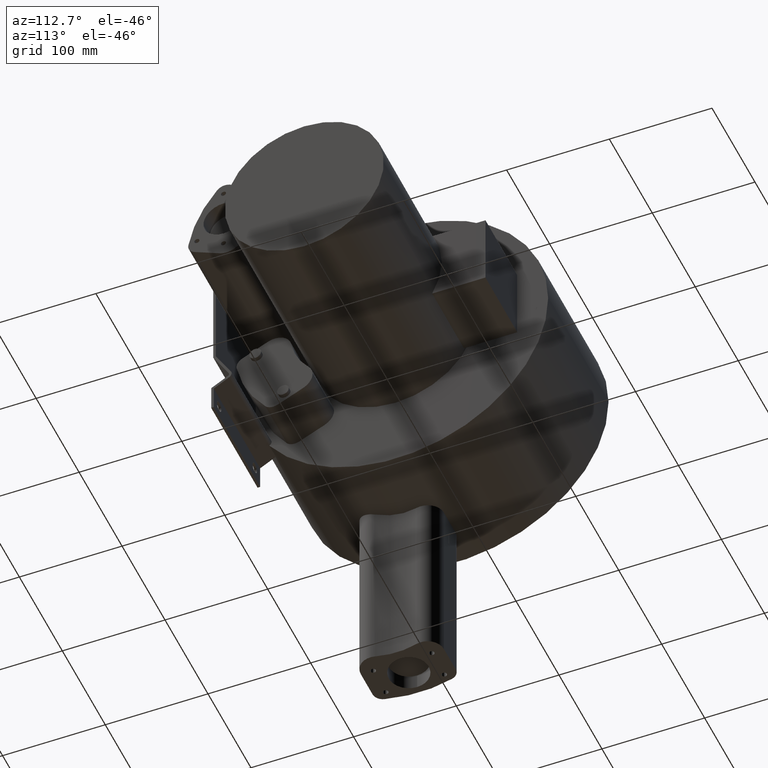
[diagram: clean part render]
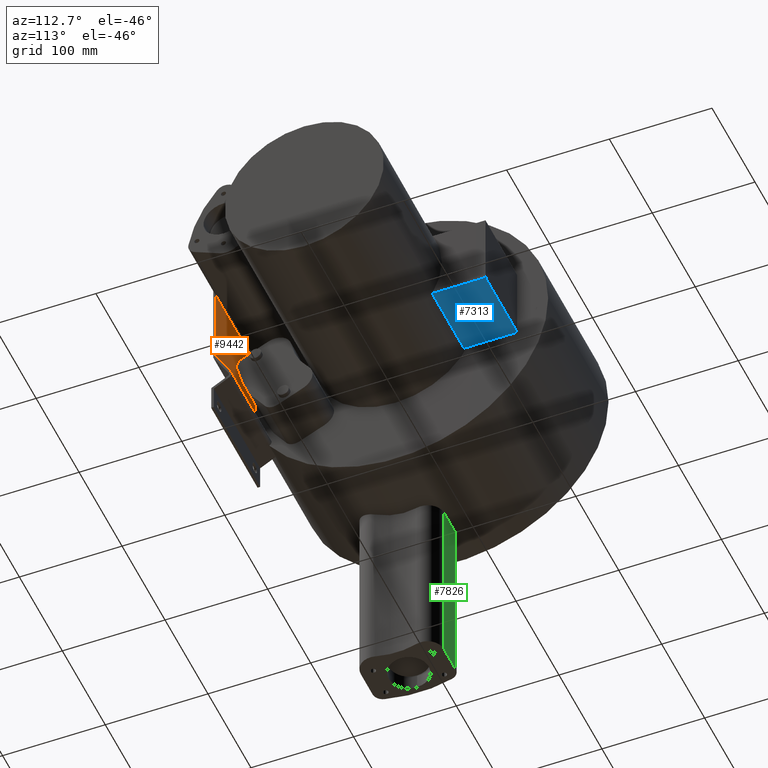
[diagram: same view with three faces highlighted in distinct colors, each labeled with its STEP entity id]
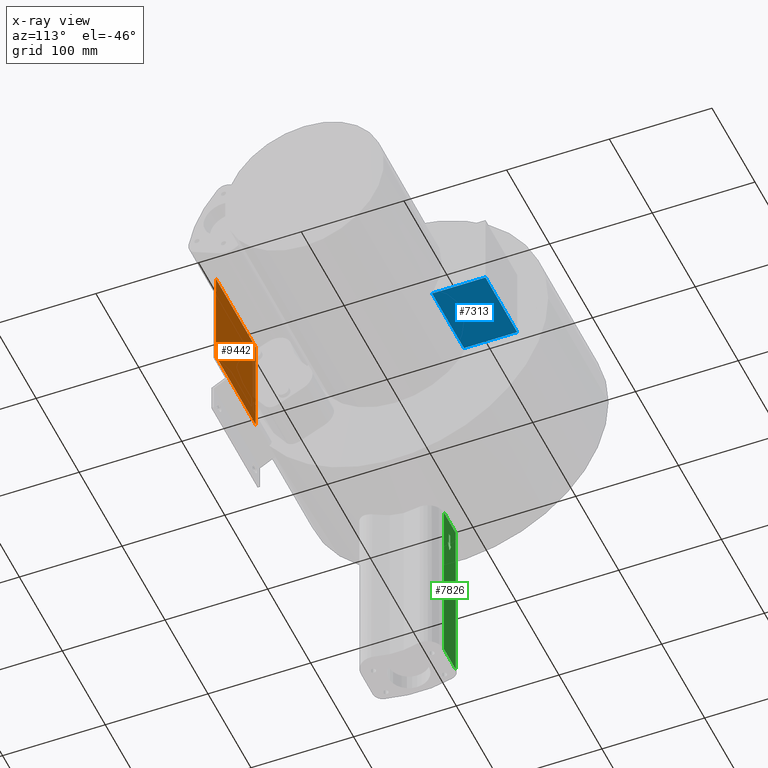
[diagram: x-ray of the same camera — body ghosted, the three highlighted faces saturated]
A machine part, auxiliary view with three faces highlighted in distinct colors.
The next image is the same camera in x-ray (body ghosted, the three faces saturated) — at least one of them is partly hidden behind the body in this view.
Their STEP definitions:

[orange] entity #9442 — the highlighted planar face has unit normal (0, 1, 0).
#8341=CARTESIAN_POINT('',(140.5,-136.5,50.133974596215467));
#8342=VERTEX_POINT('',#8341);
#8357=CARTESIAN_POINT('',(233.5,-136.5,50.133974596215467));
#8358=VERTEX_POINT('',#8357);
#8365=CARTESIAN_POINT('',(233.5,-136.5,50.133974596215467));
#8366=DIRECTION('',(-1.0,0.0,0.0));
#8367=VECTOR('',#8366,93.0);
#8368=LINE('',#8365,#8367);
#8369=EDGE_CURVE('',#8358,#8342,#8368,.T.);
#8785=CARTESIAN_POINT('',(140.5,-136.5,-50.133974596215467));
#8786=VERTEX_POINT('',#8785);
#8787=CARTESIAN_POINT('',(140.5,-136.5,50.133974596215467));
#8788=DIRECTION('',(0.0,0.0,-1.0));
#8789=VECTOR('',#8788,100.26794919243093);
#8790=LINE('',#8787,#8789);
#8791=EDGE_CURVE('',#8342,#8786,#8790,.T.);
#9213=CARTESIAN_POINT('',(233.5,-136.5,-50.133974596215467));
#9214=VERTEX_POINT('',#9213);
#9221=CARTESIAN_POINT('',(233.5,-136.5,50.133974596215623));
#9222=DIRECTION('',(0.0,0.0,-1.0));
#9223=VECTOR('',#9222,100.26794919243109);
#9224=LINE('',#9221,#9223);
#9225=EDGE_CURVE('',#8358,#9214,#9224,.T.);
#9420=CARTESIAN_POINT('',(233.5,-136.5,-50.133974596215467));
#9421=DIRECTION('',(-1.0,0.0,0.0));
#9422=VECTOR('',#9421,93.0);
#9423=LINE('',#9420,#9422);
#9424=EDGE_CURVE('',#9214,#8786,#9423,.T.);
#9431=CARTESIAN_POINT('',(130.0,-136.5,-50.133974596215467));
#9432=DIRECTION('',(0.0,1.0,0.0));
#9433=DIRECTION('',(0.0,0.0,1.0));
#9434=AXIS2_PLACEMENT_3D('',#9431,#9432,#9433);
#9435=PLANE('',#9434);
#9436=ORIENTED_EDGE('',*,*,#8791,.F.);
#9437=ORIENTED_EDGE('',*,*,#8369,.F.);
#9438=ORIENTED_EDGE('',*,*,#9225,.T.);
#9439=ORIENTED_EDGE('',*,*,#9424,.T.);
#9440=EDGE_LOOP('',(#9436,#9437,#9438,#9439));
#9441=FACE_OUTER_BOUND('',#9440,.T.);
#9442=ADVANCED_FACE('',(#9441),#9435,.T.);

[blue] entity #7313 — the highlighted planar face has unit normal (0, 0, -1).
#7233=CARTESIAN_POINT('',(219.00000000000003,68.097356776897001,-37.0));
#7234=VERTEX_POINT('',#7233);
#7242=CARTESIAN_POINT('',(219.00000000000003,120.0,-37.0));
#7243=VERTEX_POINT('',#7242);
#7244=CARTESIAN_POINT('',(219.00000000000003,68.097356776897001,-37.0));
#7245=DIRECTION('',(0.0,1.0,0.0));
#7246=VECTOR('',#7245,51.902643223102999);
#7247=LINE('',#7244,#7246);
#7248=EDGE_CURVE('',#7234,#7243,#7247,.T.);
#7265=CARTESIAN_POINT('',(145.0,68.097356776897001,-37.0));
#7266=VERTEX_POINT('',#7265);
#7275=CARTESIAN_POINT('',(145.0,120.0,-37.0));
#7276=VERTEX_POINT('',#7275);
#7283=CARTESIAN_POINT('',(145.0,68.097356776897001,-37.0));
#7284=DIRECTION('',(0.0,1.0,0.0));
#7285=VECTOR('',#7284,51.902643223102999);
#7286=LINE('',#7283,#7285);
#7287=EDGE_CURVE('',#7266,#7276,#7286,.T.);
#7292=CARTESIAN_POINT('',(145.0,0.0,-37.0));
#7293=DIRECTION('',(0.0,0.0,-1.0));
#7294=DIRECTION('',(-1.0,0.0,0.0));
#7295=AXIS2_PLACEMENT_3D('',#7292,#7293,#7294);
#7296=PLANE('',#7295);
#7297=CARTESIAN_POINT('',(145.0,68.097356776897001,-37.0));
#7298=DIRECTION('',(1.0,0.0,0.0));
#7299=VECTOR('',#7298,74.000000000000028);
#7300=LINE('',#7297,#7299);
#7301=EDGE_CURVE('',#7266,#7234,#7300,.T.);
#7302=ORIENTED_EDGE('',*,*,#7301,.F.);
#7303=ORIENTED_EDGE('',*,*,#7287,.T.);
#7304=CARTESIAN_POINT('',(145.0,120.0,-37.0));
#7305=DIRECTION('',(1.0,0.0,0.0));
#7306=VECTOR('',#7305,74.000000000000028);
#7307=LINE('',#7304,#7306);
#7308=EDGE_CURVE('',#7276,#7243,#7307,.T.);
#7309=ORIENTED_EDGE('',*,*,#7308,.T.);
#7310=ORIENTED_EDGE('',*,*,#7248,.F.);
#7311=EDGE_LOOP('',(#7302,#7303,#7309,#7310));
#7312=FACE_OUTER_BOUND('',#7311,.T.);
#7313=ADVANCED_FACE('',(#7312),#7296,.T.);

[green] entity #7826 — the highlighted planar face has unit normal (0, 1, 0).
#6739=CARTESIAN_POINT('',(49.599999999999994,13.5,-176.49422577821653));
#6740=VERTEX_POINT('',#6739);
#6747=CARTESIAN_POINT('',(51.59999999999998,13.5,-176.49422577821653));
#6748=VERTEX_POINT('',#6747);
#6749=CARTESIAN_POINT('',(51.59999999999998,13.5,-176.49422577821653));
#6750=DIRECTION('',(-1.0,0.0,0.0));
#6751=VECTOR('',#6750,1.999999999999993);
#6752=LINE('',#6749,#6751);
#6753=EDGE_CURVE('',#6748,#6740,#6752,.T.);
#6777=CARTESIAN_POINT('',(49.599999999999994,13.5,-164.0));
#6778=VERTEX_POINT('',#6777);
#6785=CARTESIAN_POINT('',(49.599999999999994,13.5,-176.49422577821653));
#6786=DIRECTION('',(0.0,0.0,1.0));
#6787=VECTOR('',#6786,12.494225778216531);
#6788=LINE('',#6785,#6787);
#6789=EDGE_CURVE('',#6740,#6778,#6788,.T.);
#6808=CARTESIAN_POINT('',(46.59999999999998,13.499999999999998,-164.0));
#6809=VERTEX_POINT('',#6808);
#6816=CARTESIAN_POINT('',(49.599999999999987,13.5,-163.99999999999997));
#6817=DIRECTION('',(-1.0,0.0,0.0));
#6818=VECTOR('',#6817,3.000000000000007);
#6819=LINE('',#6816,#6818);
#6820=EDGE_CURVE('',#6778,#6809,#6819,.T.);
#6839=CARTESIAN_POINT('',(46.59999999999998,13.499999999999998,-176.49422577821653));
#6840=VERTEX_POINT('',#6839);
#6847=CARTESIAN_POINT('',(46.59999999999998,13.499999999999998,-164.0));
#6848=DIRECTION('',(0.0,0.0,-1.0));
#6849=VECTOR('',#6848,12.494225778216531);
#6850=LINE('',#6847,#6849);
#6851=EDGE_CURVE('',#6809,#6840,#6850,.T.);
#6870=CARTESIAN_POINT('',(44.599999999999994,13.499999999999998,-176.49422577821653));
#6871=VERTEX_POINT('',#6870);
#6878=CARTESIAN_POINT('',(46.59999999999998,13.5,-176.49422577821653));
#6879=DIRECTION('',(-1.0,0.0,0.0));
#6880=VECTOR('',#6879,1.999999999999993);
#6881=LINE('',#6878,#6880);
#6882=EDGE_CURVE('',#6840,#6871,#6881,.T.);
#6901=CARTESIAN_POINT('',(48.100000000000009,13.5,-184.0));
#6902=VERTEX_POINT('',#6901);
#6909=CARTESIAN_POINT('',(44.599999999999994,13.499999999999998,-176.49422577821656));
#6910=DIRECTION('',(0.422618261740702,2.144917E-016,-0.906307787036649));
#6911=VECTOR('',#6910,8.281705541033738);
#6912=LINE('',#6909,#6911);
#6913=EDGE_CURVE('',#6871,#6902,#6912,.T.);
#6931=CARTESIAN_POINT('',(48.099999999999994,13.5,-184.0));
#6932=DIRECTION('',(0.422618261740698,0.0,0.906307787036651));
#6933=VECTOR('',#6932,8.281705541033722);
#6934=LINE('',#6931,#6933);
#6935=EDGE_CURVE('',#6902,#6748,#6934,.T.);
#7753=CARTESIAN_POINT('',(33.611649056247288,13.499999999999998,-147.63404925693803));
#7754=VERTEX_POINT('',#7753);
#7768=CARTESIAN_POINT('',(33.611649056247288,13.499999999999998,-324.0));
#7769=VERTEX_POINT('',#7768);
#7770=CARTESIAN_POINT('',(33.611649056247288,13.499999999999998,-147.63404925693803));
#7771=DIRECTION('',(0.0,0.0,-1.0));
#7772=VECTOR('',#7771,176.36595074306197);
#7773=LINE('',#7770,#7772);
#7774=EDGE_CURVE('',#7754,#7769,#7773,.T.);
#7787=CARTESIAN_POINT('',(61.009438665087004,13.5,0.0));
#7788=DIRECTION('',(0.0,1.0,0.0));
#7789=DIRECTION('',(0.0,0.0,1.0));
#7790=AXIS2_PLACEMENT_3D('',#7787,#7788,#7789);
#7791=PLANE('',#7790);
#7792=CARTESIAN_POINT('',(61.009438665087004,13.5,-147.63404925693803));
#7793=VERTEX_POINT('',#7792);
#7794=CARTESIAN_POINT('',(61.009438665087004,13.5,-147.63404925693803));
#7795=DIRECTION('',(-1.0,0.0,0.0));
#7796=VECTOR('',#7795,27.397789608839716);
#7797=LINE('',#7794,#7796);
#7798=EDGE_CURVE('',#7793,#7754,#7797,.T.);
#7799=ORIENTED_EDGE('',*,*,#7798,.F.);
#7800=CARTESIAN_POINT('',(61.009438665087004,13.5,-324.0));
#7801=VERTEX_POINT('',#7800);
#7802=CARTESIAN_POINT('',(61.009438665087004,13.5,-147.63404925693803));
#7803=DIRECTION('',(0.0,0.0,-1.0));
#7804=VECTOR('',#7803,176.36595074306197);
#7805=LINE('',#7802,#7804);
#7806=EDGE_CURVE('',#7793,#7801,#7805,.T.);
#7807=ORIENTED_EDGE('',*,*,#7806,.T.);
#7808=CARTESIAN_POINT('',(61.009438665087004,13.5,-324.0));
#7809=DIRECTION('',(-1.0,0.0,0.0));
#7810=VECTOR('',#7809,27.397789608839716);
#7811=LINE('',#7808,#7810);
#7812=EDGE_CURVE('',#7801,#7769,#7811,.T.);
#7813=ORIENTED_EDGE('',*,*,#7812,.T.);
#7814=ORIENTED_EDGE('',*,*,#7774,.F.);
#7815=EDGE_LOOP('',(#7799,#7807,#7813,#7814));
#7816=FACE_OUTER_BOUND('',#7815,.T.);
#7817=ORIENTED_EDGE('',*,*,#6753,.T.);
#7818=ORIENTED_EDGE('',*,*,#6789,.T.);
#7819=ORIENTED_EDGE('',*,*,#6820,.T.);
#7820=ORIENTED_EDGE('',*,*,#6851,.T.);
#7821=ORIENTED_EDGE('',*,*,#6882,.T.);
#7822=ORIENTED_EDGE('',*,*,#6913,.T.);
#7823=ORIENTED_EDGE('',*,*,#6935,.T.);
#7824=EDGE_LOOP('',(#7817,#7818,#7819,#7820,#7821,#7822,#7823));
#7825=FACE_BOUND('',#7824,.T.);
#7826=ADVANCED_FACE('',(#7816,#7825),#7791,.T.);